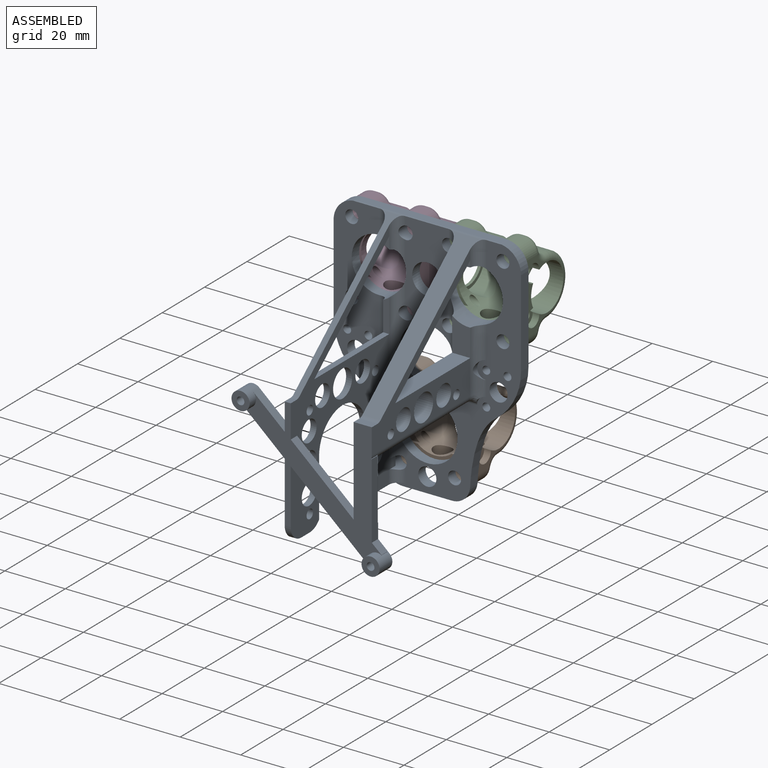
[diagram: assembled view]
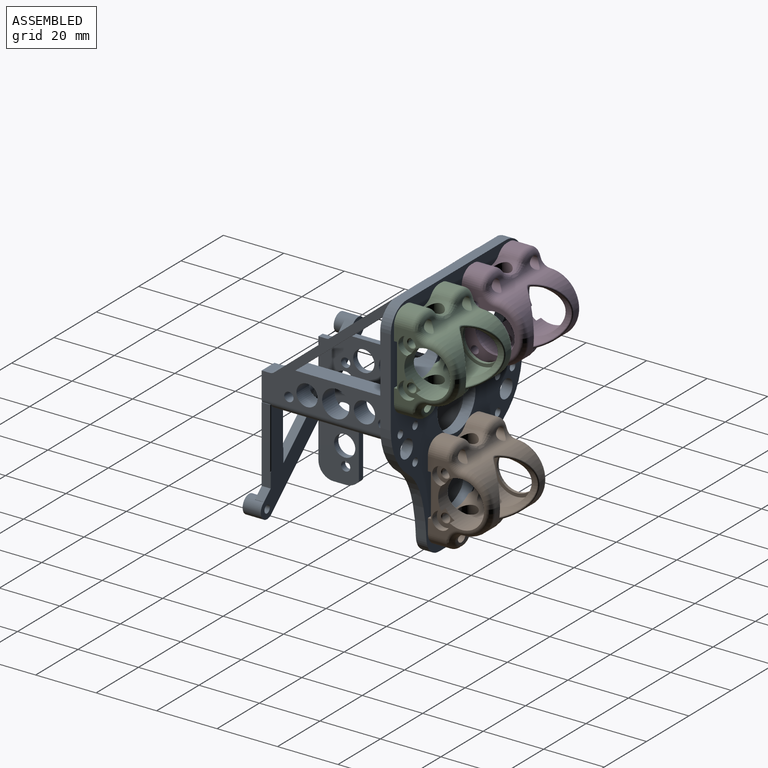
[diagram: assembled view, second angle]
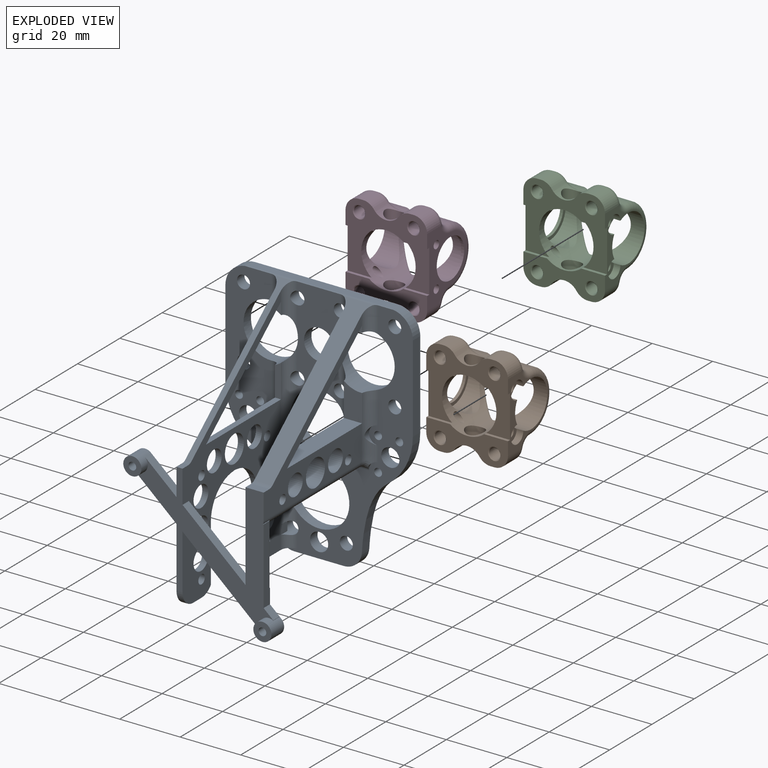
[diagram: exploded view]
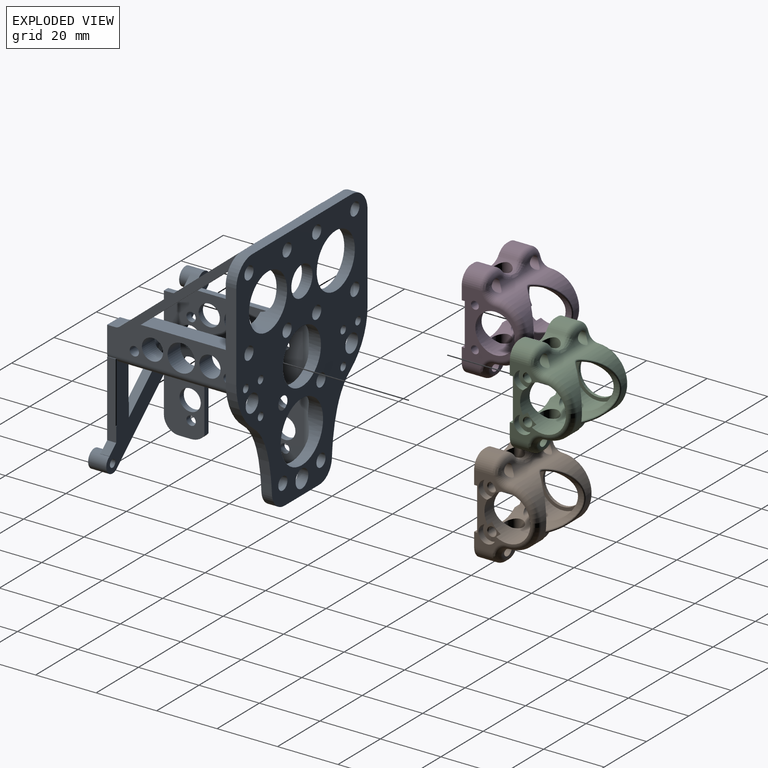
[diagram: exploded view, second angle]
ASSEMBLY  parts=4 mates=3
PART A: 136 faces, bbox 70.6x64.6x89.6 mm
  f0: plane 46.49x42.5mm, normal (0,-1,0), area 565mm2, adj f1,f95,f96,f100,f101,f102,f115,f116
  f1: plane 26.51x23.43mm, normal (-0.66,0,-0.75), area 106.1mm2, adj f0,f2,f116,f135
  f2: plane 33.31x31.5mm, normal (0,1,0), area 353.4mm2, adj f1,f3,f5,f6,f7,f93,f94,f116
  f3: cylinder r=1.28mm len=6mm, axis (0,-1,0), area 48.1mm2, adj f2,f4
  f4: plane 6x6mm, normal (0,-1,0), area 23.2mm2, adj f3,f135
  f5: plane 0.41x0.41mm, normal (0.66,0,0.75), area 0mm2, adj f2,f6,f132
  f6: cylinder r=0.3mm len=20.12mm, axis (0,0,1), area 9.4mm2, adj f2,f5,f130,f131,f132
  f7: plane 55.4x12.46mm, normal (0,0,-1), area 159.4mm2, adj f2,f8,f90,f91,f92,f93,f118,f130
  f8: torus R=5.75mm, axis (0,0,1), area 5.8mm2, adj f7,f9,f89,f130
  f9: cylinder r=3.25mm len=22.36mm, axis (0,0,-1), area 88.3mm2, adj f8,f10,f11,f85,f86,f87,f88,f89
  f10: cylinder r=3mm len=6mm, axis (0,1,0), area 0mm2, adj f9,f88
  f11: cylinder r=9mm len=18mm, axis (0,1,0), area 248mm2, adj f9,f12,f69,f72,f73,f74,f75,f85
  f12: cylinder r=3.25mm len=15.97mm, axis (0,0,1), area 45mm2, adj f11,f13,f14,f16,f68,f69,f74,f118
  f13: plane 35.39x29.23mm, normal (0,0.64,-0.77), area 275.4mm2, adj f12,f73,f74,f86,f118,f129
  f14: plane 44.96x37.14mm, normal (0,-0.64,0.77), area 353.7mm2, adj f12,f15,f16,f73,f118,f129
  f15: cylinder r=2.5mm len=6mm, axis (1,0,0), area 10.4mm2, adj f14,f118,f128,f129
  f16: cylinder r=1.25mm len=49.23mm, axis (1,0,0), area 29.4mm2, adj f12,f14,f17,f55,f57,f58,f65,f66
  f17: cylinder r=3.25mm len=14.81mm, axis (0,0,-1), area 44.6mm2, adj f16,f18,f19,f53,f54,f55,f69,f116
  f18: plane 4.07x2.02mm, normal (0,-1,0), area 6.9mm2, adj f17,f19,f54,f57
  f19: cylinder r=9mm len=18mm, axis (0,1,0), area 223.1mm2, adj f17,f18,f20,f49,f50,f57,f58,f69
  f20: cylinder r=3.25mm len=39mm, axis (0,0,1), area 195mm2, adj f19,f21,f48,f49,f58,f102
  f21: bspline ~18.12x3.7mm, area 51.8mm2, adj f20,f22,f25,f102
  f22: extruded ~22.85x8.56mm, area 88.1mm2, adj f21,f23,f25,f58,f75
  f23: cylinder r=20mm len=16.21mm, axis (0,1,0), area 66.1mm2, adj f22,f24,f58,f75
  f24: plane 28.79x3.5mm, normal (-1,0,0), area 100.8mm2, adj f23,f58,f65,f75
  f25: cylinder r=6mm len=15.94mm, axis (0,1,0), area 52.2mm2, adj f21,f22,f26,f35,f43,f75,f88,f102
  f26: cylinder r=5.5mm len=4.38mm, axis (1,0,0), area 8.5mm2, adj f25,f27,f35,f102,f116
  f27: plane 18.83x2mm, normal (0,-1,0), area 37.7mm2, adj f26,f28,f102,f116
  f28: cylinder r=11.12mm len=11.05mm, axis (1,0,0), area 32.4mm2, adj f27,f29,f102,f116
  f29: plane 2x1.27mm, normal (0,-0.11,-0.99), area 2.6mm2, adj f28,f30,f102,f116
  f30: plane 2x0.07mm, normal (0,1,0), area 0.1mm2, adj f29,f31,f102,f116
  f31: cylinder r=11.12mm len=11.13mm, axis (1,0,0), area 35mm2, adj f30,f32,f102,f116
  f32: plane 18.83x2mm, normal (0,1,0), area 37.7mm2, adj f31,f33,f102,f116
  f33: cylinder r=5.5mm len=4.38mm, axis (1,0,0), area 10.1mm2, adj f32,f34,f102,f116
  f34: plane 4x2mm, normal (0,0,-1), area 8mm2, adj f33,f95,f102,f116
  f35: plane 9.5x4.23mm, normal (0,0,-1), area 11.6mm2, adj f25,f26,f36,f88,f116
  f36: cylinder r=3.25mm len=4.75mm, axis (0,0,-1), area 23.5mm2, adj f35,f37,f88,f116
  f37: cylinder r=2.15mm len=6.75mm, axis (0,1,0), area 59.3mm2, adj f36,f38,f39,f75,f88,f116
  f38: plane 3.08x0.65mm, normal (0,1,0), area 1.4mm2, adj f37,f116
  f39: cylinder r=3.25mm len=21.5mm, axis (0,0,-1), area 79.1mm2, adj f37,f40,f41,f88,f116
  f40: cylinder r=10mm len=20mm, axis (0,1,0), area 219.9mm2, adj f39,f75,f88
  f41: cylinder r=2.15mm len=6.75mm, axis (0,1,0), area 59.3mm2, adj f39,f42,f50,f75,f88,f116
  f42: plane 3.08x0.65mm, normal (0,1,0), area 1.4mm2, adj f41,f116
  f43: plane 16.33x3.5mm, normal (0,0,-1), area 57.2mm2, adj f25,f44,f75,f88
  f44: cylinder r=6mm len=5.99mm, axis (0,1,0), area 31.8mm2, adj f43,f45,f75,f88
  f45: extruded ~22.85x8.56mm, area 88.1mm2, adj f44,f46,f75,f88
  f46: cylinder r=20mm len=16.21mm, axis (0,1,0), area 66.1mm2, adj f45,f47,f75,f88
  f47: plane 28.79x3.5mm, normal (1,0,0), area 100.8mm2, adj f46,f67,f75,f88
  f48: plane 35.39x2.02mm, normal (0,0,1), area 70.8mm2, adj f20,f49,f50,f54,f102,f116
  f49: plane 10.93x2.02mm, normal (0,-1,0), area 20.8mm2, adj f19,f20,f48,f50
  f50: cylinder r=3.25mm len=29.64mm, axis (0,0,-1), area 107mm2, adj f19,f41,f48,f49,f51,f52,f69,f88
  f51: cylinder r=9mm len=18mm, axis (0,1,0), area 197.9mm2, adj f50,f69,f72,f75,f88
  f52: cylinder r=2.15mm len=4.3mm, axis (0,1,0), area 47.3mm2, adj f50,f69,f75
  f53: cylinder r=2.15mm len=4.3mm, axis (0,1,0), area 47.3mm2, adj f17,f69,f75
  f54: plane 35.39x29.23mm, normal (0,0.64,-0.77), area 91.8mm2, adj f17,f18,f48,f57,f102,f116
  f55: plane 44.96x37.14mm, normal (0,-0.64,0.77), area 120.5mm2, adj f16,f17,f56,f57,f102,f116
  f56: cylinder r=2.5mm len=2mm, axis (-1,0,0), area 3.5mm2, adj f55,f102,f115,f116
  f57: cylinder r=3.25mm len=8.62mm, axis (0,0,1), area 36.9mm2, adj f16,f18,f19,f54,f55,f58,f102
  f58: plane 64.73x15.77mm, normal (0,-1,0), area 572.9mm2, adj f16,f19,f20,f22,f23,f24,f57,f59
  f59: cylinder r=2.15mm len=4.3mm, axis (0,1,0), area 47.3mm2, adj f58,f75
  f60: cylinder r=1.3mm len=3.5mm, axis (0,1,0), area 28.6mm2, adj f58,f75
  f61: cylinder r=1.3mm len=3.5mm, axis (0,1,0), area 28.6mm2, adj f58,f75
  f62: cylinder r=1.3mm len=3.5mm, axis (0,1,0), area 28.6mm2, adj f58,f75
  f63: cylinder r=2.15mm len=4.3mm, axis (0,1,0), area 47.3mm2, adj f58,f75
  f64: cylinder r=3mm len=6mm, axis (0,-1,0), area 66mm2, adj f58,f75
  f65: cylinder r=7.5mm len=7.5mm, axis (0,1,0), area 41mm2, adj f16,f24,f58,f66,f75
  f66: plane 47x3.05mm, normal (0,0,1), area 143.4mm2, adj f16,f65,f67,f75
  f67: cylinder r=7.5mm len=7.5mm, axis (0,1,0), area 41mm2, adj f16,f47,f66,f75,f88
  f68: cylinder r=2.15mm len=4.3mm, axis (0,1,0), area 47.3mm2, adj f12,f69,f75
  f69: plane 34.08x14.3mm, normal (0,-1,0), area 339.3mm2, adj f11,f12,f16,f17,f19,f50,f51,f52
  f70: cylinder r=5mm len=10mm, axis (0,1,0), area 110mm2, adj f69,f75
  f71: cylinder r=2.15mm len=4.3mm, axis (0,1,0), area 47.3mm2, adj f69,f72,f75
  f72: cylinder r=3.25mm len=31.15mm, axis (0,0,1), area 104.8mm2, adj f11,f51,f69,f71,f85,f86,f88,f91
  f73: cylinder r=3.25mm len=8.65mm, axis (0,0,-1), area 36.1mm2, adj f11,f13,f14,f16,f74,f88,f129
  f74: plane 6.02x4.23mm, normal (0,-1,0), area 16.8mm2, adj f11,f12,f13,f73
  f75: plane 89.6x70.6mm, normal (0,1,0), area 2606.6mm2, adj f11,f19,f22,f23,f24,f25,f37,f40
  f76: cylinder r=1.3mm len=3.5mm, axis (0,1,0), area 28.6mm2, adj f75,f88
  f77: cylinder r=1.3mm len=3.5mm, axis (0,1,0), area 28.6mm2, adj f75,f88
  f78: cylinder r=1.3mm len=3.5mm, axis (0,1,0), area 28.6mm2, adj f75,f88
  f79: cylinder r=2.15mm len=4.3mm, axis (0,1,0), area 47.3mm2, adj f75,f88
  f80: cylinder r=2.15mm len=1.3mm, axis (0,1,0), area 0mm2, adj f75
  f81: cylinder r=2.15mm len=4.3mm, axis (0,1,0), area 47.3mm2, adj f75,f88
  f82: cylinder r=2.15mm len=4.3mm, axis (0,1,0), area 47.3mm2, adj f75,f88
  f83: cylinder r=3mm len=6mm, axis (0,-1,0), area 66mm2, adj f75,f88
  f84: cylinder r=3mm len=6mm, axis (0,-1,0), area 66mm2, adj f75,f88
  f85: plane 11.09x6.02mm, normal (0,-1,0), area 58.1mm2, adj f9,f11,f72,f86
  f86: plane 35.39x6.02mm, normal (0,0,1), area 212.3mm2, adj f9,f13,f72,f85,f118,f129
  f87: cylinder r=3mm len=3.25mm, axis (0,1,0), area 1.7mm2, adj f9,f88,f89,f90
  f88: plane 80.92x42.48mm, normal (0,-1,0), area 855.9mm2, adj f9,f10,f11,f16,f25,f35,f36,f37
  f89: bspline ~4.09x3.04mm, area 6.2mm2, adj f8,f9,f87,f90
  f90: cylinder r=1.25mm len=5.65mm, axis (-1,0,0), area 9.5mm2, adj f7,f87,f88,f89,f91
  f91: cylinder r=2.15mm len=4.3mm, axis (0,1,0), area 0.9mm2, adj f7,f72,f88,f90,f92,f118
  f92: plane 9.31x9.2mm, normal (0,1,0), area 0.2mm2, adj f7,f91,f118
  f93: cylinder r=0.3mm len=13.98mm, axis (0,0,-1), area 6.4mm2, adj f2,f7,f94,f118
  f94: cylinder r=0.3mm len=0.7mm, axis (-0.75,0,0.66), area 0.1mm2, adj f2,f93,f118
  f95: cylinder r=5mm len=5mm, axis (-1,0,0), area 15.7mm2, adj f0,f34,f102,f116
  f96: plane 14.49x12.8mm, normal (-0.66,0,-0.75), area 58mm2, adj f0,f97,f100,f102
  f97: plane 18.05x15.5mm, normal (0,1,0), area 109.1mm2, adj f96,f98,f100,f101,f102
  f98: cylinder r=1.28mm len=6mm, axis (0,-1,0), area 48.1mm2, adj f97,f99
  f99: plane 6x6mm, normal (0,-1,0), area 23.2mm2, adj f98,f100
  f100: cylinder r=3mm len=6mm, axis (0,-1,0), area 84.8mm2, adj f0,f96,f97,f99,f101
  f101: plane 10.51x9.29mm, normal (0.66,0,0.75), area 42.1mm2, adj f0,f97,f100,f102
  f102: plane 77.32x46.75mm, normal (-1,0,0), area 1125.3mm2, adj f0,f20,f21,f25,f26,f27,f28,f29
  f103: cylinder r=1.53mm len=3.05mm, axis (1,0,0), area 19.2mm2, adj f102,f116
  f104: cylinder r=1.53mm len=3.05mm, axis (1,0,0), area 19.2mm2, adj f102,f116
  f105: cylinder r=1.53mm len=3.05mm, axis (1,0,0), area 19.2mm2, adj f102,f116
  f106: cylinder r=3.5mm len=7mm, axis (-1,0,0), area 44mm2, adj f102,f116
  f107: cylinder r=3.5mm len=7mm, axis (-1,0,0), area 44mm2, adj f102,f116
  f108: cylinder r=3.5mm len=7mm, axis (-1,0,0), area 44mm2, adj f102,f116
  f109: cylinder r=3.5mm len=7mm, axis (-1,0,0), area 44mm2, adj f102,f116
  f110: cylinder r=3.5mm len=7mm, axis (1,0,0), area 44mm2, adj f102,f116
  f111: cylinder r=4.5mm len=9mm, axis (-1,0,0), area 56.5mm2, adj f102,f116
  f112: cylinder r=1.53mm len=3.05mm, axis (1,0,0), area 19.2mm2, adj f102,f116
  f113: cylinder r=3.5mm len=7mm, axis (1,0,0), area 44mm2, adj f102,f116
  f114: cylinder r=3.5mm len=7mm, axis (-1,0,0), area 44mm2, adj f102,f116
  f115: plane 2.6x2mm, normal (0,0,1), area 5.2mm2, adj f0,f56,f102,f116
  f116: plane 77.32x49.5mm, normal (1,0,0), area 1148.6mm2, adj f0,f1,f2,f17,f26,f27,f28,f29
  f117: plane 20.8x18.38mm, normal (0.66,0,0.75), area 83.3mm2, adj f0,f2,f116,f118
  f118: plane 64.62x49.61mm, normal (-1,0,0), area 625.2mm2, adj f0,f2,f7,f12,f13,f14,f15,f72
  f119: cylinder r=3.5mm len=7mm, axis (1,0,0), area 131.9mm2, adj f118,f129
  f120: cylinder r=3.5mm len=7mm, axis (1,0,0), area 131.9mm2, adj f118,f129
  f121: cylinder r=4.5mm len=9mm, axis (-1,0,0), area 169.6mm2, adj f118,f129
  f122: cylinder r=2.55mm len=5.1mm, axis (1,0,0), area 36.9mm2, adj f118,f123
  f123: plane 5.1x5.1mm, normal (-1,0,0), area 13.1mm2, adj f122,f124
  f124: cylinder r=1.53mm len=8.3mm, axis (-1,0,0), area 79.5mm2, adj f123,f129
  f125: cylinder r=2.55mm len=5.1mm, axis (1,0,0), area 36.9mm2, adj f118,f126
  f126: plane 5.1x5.1mm, normal (-1,0,0), area 13.1mm2, adj f125,f127
  f127: cylinder r=1.53mm len=8.3mm, axis (-1,0,0), area 79.5mm2, adj f126,f129
  f128: plane 6x2.6mm, normal (0,0,1), area 15.6mm2, adj f0,f15,f118,f129
  f129: plane 46.25x43.82mm, normal (1,0,0), area 483mm2, adj f0,f9,f13,f14,f15,f73,f86,f119
  f130: cylinder r=2.5mm len=46.25mm, axis (0,-1,0), area 172.9mm2, adj f0,f2,f6,f7,f8,f129,f131
  f131: plane 2.99x0.21mm, normal (0,0,1), area 0.6mm2, adj f0,f6,f130,f132
  f132: plane 24.99x3mm, normal (1,0,0), area 68.9mm2, adj f0,f2,f5,f6,f131,f133
  f133: plane 3.2x3mm, normal (0.66,0,0.75), area 12.8mm2, adj f0,f2,f132,f134
  f134: plane 3x0.08mm, normal (1,0,0), area 0.2mm2, adj f0,f2,f133,f135
  f135: cylinder r=3mm len=6mm, axis (0,-1,0), area 86.6mm2, adj f0,f1,f2,f4,f134
PART B: 85 faces, bbox 32.7x27.1x21.7 mm
  f0: plane 27x9mm, normal (0,0,-1), area 159.5mm2, adj f3,f9,f10,f15,f33,f37,f38,f41
  f1: plane 5.4x1.1mm, normal (0,0,1), area 2.4mm2, adj f13,f30,f63,f65,f67,f69
  f2: plane 5.4x1.1mm, normal (0,0,1), area 2.4mm2, adj f12,f32,f62,f64,f66,f68
  f3: plane 7.84x1mm, normal (1,0,0), area 7.8mm2, adj f0,f9,f16,f33
  f4: plane 14x7.84mm, normal (0,0,-1), area 77.2mm2, adj f5,f10,f15,f33
  f5: plane 7.84x1mm, normal (-1,0,0), area 7.8mm2, adj f4,f10,f18,f33
  f6: cylinder r=7.6mm len=15.2mm, axis (0,1,0), area 288.8mm2, adj f9,f22,f23,f24,f25,f33
  f7: cylinder r=1.3mm len=9.28mm, axis (0,-1,0), area 62.1mm2, adj f10,f33
  f8: cylinder r=1.3mm len=9.28mm, axis (0,-1,0), area 62.1mm2, adj f10,f33
  f9: plane 23x18.9mm, normal (0,-1,0), area 82.6mm2, adj f0,f3,f6,f16,f17,f18,f22,f24
  f10: plane 23x18.9mm, normal (0,1,0), area 168.2mm2, adj f0,f4,f5,f7,f8,f15,f18,f20
  f11: cylinder r=1.85mm len=9.55mm, axis (0,0,-1), area 95.9mm2, adj f31,f32,f36
  f12: cylinder r=1.85mm len=9.55mm, axis (0,0,-1), area 95.9mm2, adj f2,f32,f39
  f13: cylinder r=1.85mm len=9.55mm, axis (0,0,-1), area 95.9mm2, adj f1,f30,f38
  f14: cylinder r=1.85mm len=9.55mm, axis (0,0,-1), area 95.9mm2, adj f29,f30,f37
  f15: plane 7.84x1mm, normal (1,0,0), area 7.8mm2, adj f0,f4,f10,f33
  f16: plane 14x7.84mm, normal (0,0,-1), area 77.2mm2, adj f3,f9,f17,f33
  f17: plane 7.84x1mm, normal (-1,0,0), area 7.8mm2, adj f9,f16,f18,f33
  f18: plane 27x9mm, normal (0,0,-1), area 159.5mm2, adj f5,f9,f10,f17,f33,f36,f39,f40
  f19: cylinder r=7.6mm len=15.2mm, axis (0,1,0), area 259.4mm2, adj f21,f33
  f20: cylinder r=6.5mm len=13mm, axis (0,1,0), area 40.8mm2, adj f10,f21
  f21: plane 15.2x15.2mm, normal (0,-1,0), area 48.7mm2, adj f19,f20
  f22: cylinder r=2.93mm len=5.85mm, axis (0,-1,0), area 30.4mm2, adj f6,f9,f23
  f23: plane 5.85x5.85mm, normal (0,-1,0), area 16.2mm2, adj f6,f22,f34
  f24: cylinder r=2.93mm len=5.85mm, axis (0,-1,0), area 30.4mm2, adj f6,f9,f25
  f25: plane 5.85x5.85mm, normal (0,-1,0), area 16.2mm2, adj f6,f24,f35
  f26: cylinder r=1.3mm len=6.83mm, axis (0,-1,0), area 42.1mm2, adj f33,f35
  f27: cylinder r=1.3mm len=6.83mm, axis (0,-1,0), area 42.1mm2, adj f33,f34
  f28: cylinder r=9.9mm len=23mm, axis (0,-1,0), area 351.8mm2, adj f30,f32,f56,f57,f84
  f29: plane 5.4x1.1mm, normal (0,0,1), area 2.4mm2, adj f14,f30,f73,f75,f77,f79
  f30: cylinder r=3mm len=23mm, axis (0,-1,0), area 73.3mm2, adj f1,f13,f14,f28,f29,f59,f61,f71
  f31: plane 5.4x1.1mm, normal (0,0,1), area 2.4mm2, adj f11,f32,f72,f74,f76,f78
  f32: cylinder r=3mm len=23mm, axis (0,-1,0), area 73.4mm2, adj f2,f11,f12,f28,f31,f58,f60,f70
  f33: cylinder r=9mm len=20.49mm, axis (0,0,-1), area 442.7mm2, adj f0,f3,f4,f5,f6,f7,f8,f15
  f34: cone r=1.3mm half-angle=45deg, axis (0,-1,0), area 3.2mm2, adj f23,f27
  f35: cone r=1.3mm half-angle=45deg, axis (0,-1,0), area 3.2mm2, adj f25,f26
  f36: cone r=1.85mm half-angle=45deg, axis (0,0,-1), area 4.4mm2, adj f11,f18
  f37: cone r=1.85mm half-angle=45deg, axis (0,0,-1), area 4.4mm2, adj f0,f14
  f38: cone r=1.85mm half-angle=45deg, axis (0,0,-1), area 4.4mm2, adj f0,f13
  f39: cone r=1.85mm half-angle=45deg, axis (0,0,-1), area 4.4mm2, adj f12,f18
  f40: cylinder r=5mm len=8.15mm, axis (0,0,-1), area 31.9mm2, adj f18,f43,f49,f51,f68,f70,f72
  f41: cylinder r=5mm len=8.15mm, axis (0,0,-1), area 31.9mm2, adj f0,f42,f53,f55,f69,f71,f73
  f42: cylinder r=3mm len=6mm, axis (1,0,0), area 70.5mm2, adj f33,f41
  f43: cylinder r=3mm len=6mm, axis (1,0,0), area 70.5mm2, adj f33,f40
  f44: plane 6x1.25mm, normal (1,0,0), area 7.5mm2, adj f18,f50,f51,f76
  f45: plane 6x1.25mm, normal (1,0,0), area 7.5mm2, adj f18,f48,f49,f64
  f46: plane 6x1.25mm, normal (-1,0,0), area 7.5mm2, adj f0,f54,f55,f65
  f47: plane 6x1.25mm, normal (-1,0,0), area 7.5mm2, adj f0,f52,f53,f77
  f48: cylinder r=4.5mm len=6.2mm, axis (0,0,1), area 42.7mm2, adj f10,f18,f45,f60,f62
  f49: cylinder r=4.5mm len=6mm, axis (0,0,-1), area 25.7mm2, adj f18,f40,f45,f66
  f50: cylinder r=4.5mm len=6.2mm, axis (0,0,-1), area 42.7mm2, adj f9,f18,f44,f78,f80
  f51: cylinder r=4.5mm len=6mm, axis (0,0,-1), area 25.7mm2, adj f18,f40,f44,f74
  f52: cylinder r=4.5mm len=6.2mm, axis (0,0,-1), area 42.7mm2, adj f0,f9,f47,f79,f81
  f53: cylinder r=4.5mm len=6mm, axis (0,0,-1), area 25.7mm2, adj f0,f41,f47,f75
  f54: cylinder r=4.5mm len=6.2mm, axis (0,0,1), area 42.7mm2, adj f0,f10,f46,f61,f63
  f55: cylinder r=4.5mm len=6mm, axis (0,0,-1), area 25.7mm2, adj f0,f41,f46,f67
  f56: bspline ~19.63x18.84mm, area 61.4mm2, adj f28,f33
  f57: torus R=7.9mm, axis (0,-1,0), area 90.5mm2, adj f10,f28,f58,f59
  f58: torus R=5mm, axis (0,-1,0), area 15.1mm2, adj f10,f32,f57,f60
  f59: torus R=5mm, axis (0,-1,0), area 15.1mm2, adj f10,f30,f57,f61
  f60: bspline ~4.3x2.85mm, area 5.9mm2, adj f32,f48,f58,f62
  f61: bspline ~4.3x2.85mm, area 5.9mm2, adj f30,f54,f59,f63
  f62: torus R=2.5mm, axis (0,0,1), area 11.6mm2, adj f2,f48,f60,f64
  f63: torus R=2.5mm, axis (0,0,1), area 11.6mm2, adj f1,f54,f61,f65
  f64: cylinder r=2mm len=2mm, axis (0,-1,0), area 3.9mm2, adj f2,f45,f62,f66
  f65: cylinder r=2mm len=2mm, axis (0,1,0), area 3.9mm2, adj f1,f46,f63,f67
  f66: torus R=2.5mm, axis (0,0,1), area 11.3mm2, adj f2,f49,f64,f68
  f67: torus R=2.5mm, axis (0,0,1), area 11.3mm2, adj f1,f55,f65,f69
  f68: torus R=7mm, axis (0,0,1), area 0.2mm2, adj f2,f40,f66,f70
  f69: torus R=7mm, axis (0,0,1), area 0.2mm2, adj f1,f41,f67,f71
  f70: bspline ~12.42x3.53mm, area 24.8mm2, adj f32,f40,f68,f72
  f71: bspline ~12.42x3.53mm, area 24.8mm2, adj f30,f41,f69,f73
  f72: torus R=7mm, axis (0,0,1), area 0.2mm2, adj f31,f40,f70,f74
  f73: torus R=7mm, axis (0,0,1), area 0.2mm2, adj f29,f41,f71,f75
  f74: torus R=2.5mm, axis (0,0,1), area 11.3mm2, adj f31,f51,f72,f76
  f75: torus R=2.5mm, axis (0,0,1), area 11.3mm2, adj f29,f53,f73,f77
  f76: cylinder r=2mm len=2mm, axis (0,-1,0), area 3.9mm2, adj f31,f44,f74,f78
  f77: cylinder r=2mm len=2mm, axis (0,1,0), area 3.9mm2, adj f29,f47,f75,f79
  f78: torus R=2.5mm, axis (0,0,1), area 11.6mm2, adj f31,f50,f76,f80
  f79: torus R=2.5mm, axis (0,0,1), area 11.6mm2, adj f29,f52,f77,f81
  f80: bspline ~4.3x2.85mm, area 5.9mm2, adj f32,f50,f78,f82
  f81: bspline ~4.3x2.85mm, area 5.9mm2, adj f30,f52,f79,f83
  f82: torus R=5mm, axis (0,-1,0), area 15.1mm2, adj f9,f32,f80,f84
  f83: torus R=5mm, axis (0,-1,0), area 15.1mm2, adj f9,f30,f81,f84
  f84: torus R=7.9mm, axis (0,-1,0), area 90.5mm2, adj f9,f28,f82,f83
PART C: same geometry as B
PART D: same geometry as B
PLACE A t=(-52.38,6.47,3.57)mm fixed
PLACE B rot(axis=(-0.58,0.58,0.58),120deg) t=(-65.88,17.47,-8.43)mm
PLACE C rot(axis=(-0.58,0.58,0.58),120deg) t=(-49.88,17.47,36.57)mm
PLACE D rot(axis=(-0.58,-0.58,-0.58),120deg) t=(-54.88,17.47,36.57)mm
MATE fastened C.f14 <-> A.f82  axis (0,-1,0) through (-27.38,6.47,48.57)mm
MATE fastened B.f12 <-> A.f37  axis (0,-1,0) through (-61.38,6.47,-20.43)mm
MATE fastened D.f11 <-> A.f59  axis (0,-1,0) through (-77.38,6.47,48.57)mm
